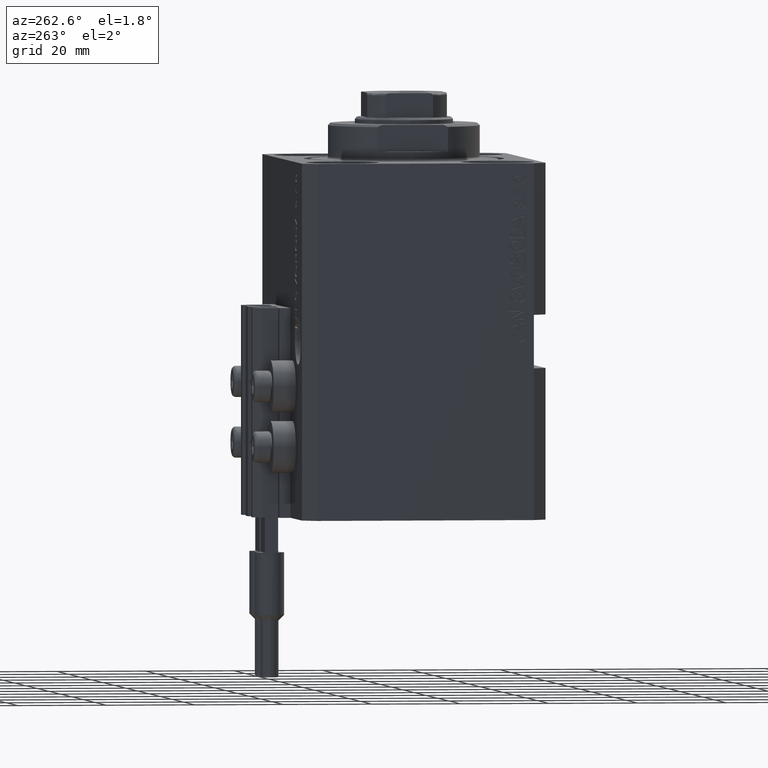
[diagram: clean part render]
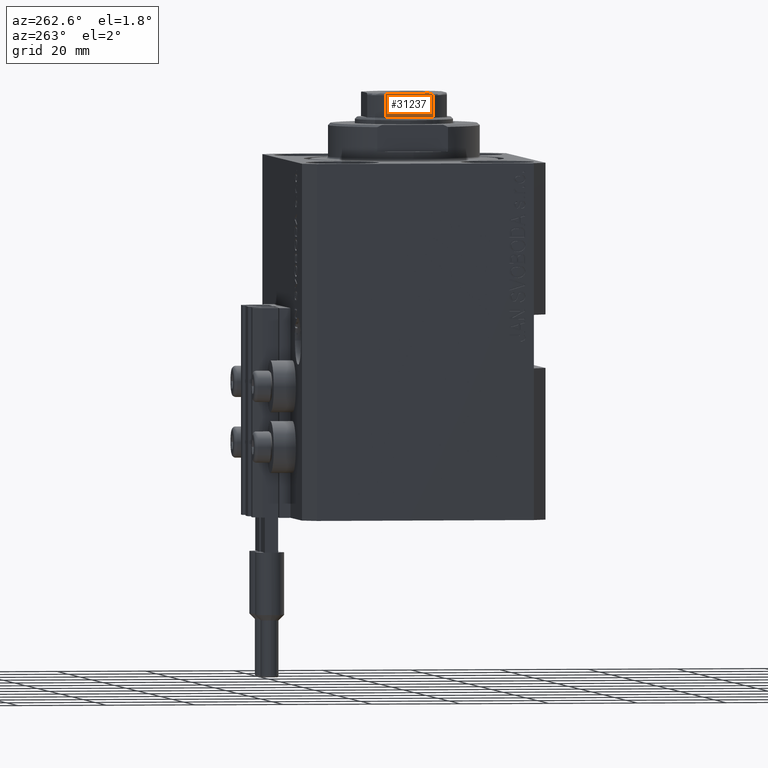
[diagram: same view with one face highlighted and labeled with its STEP entity id]
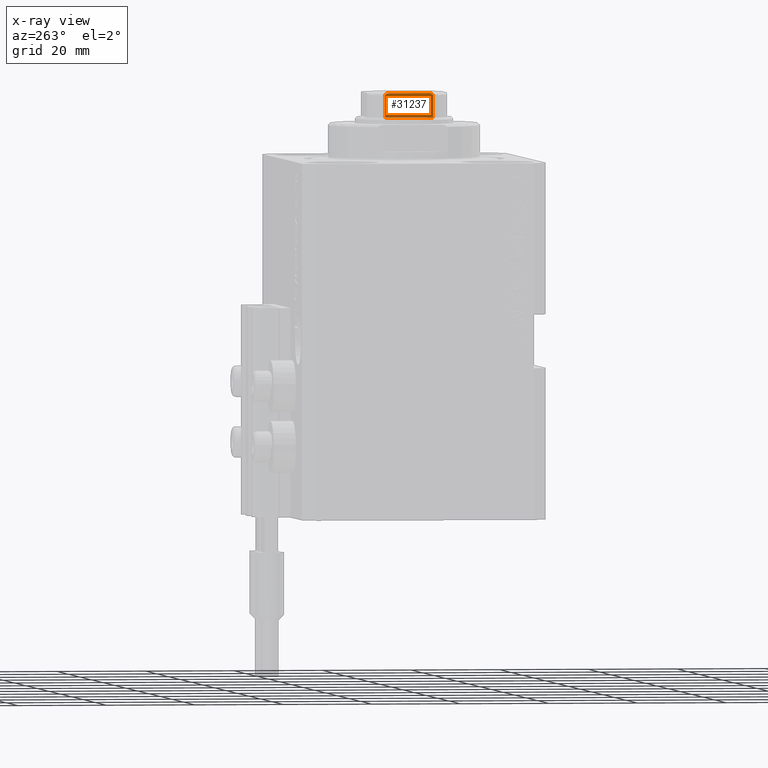
[diagram: x-ray of the same camera — body ghosted, the highlighted face saturated]
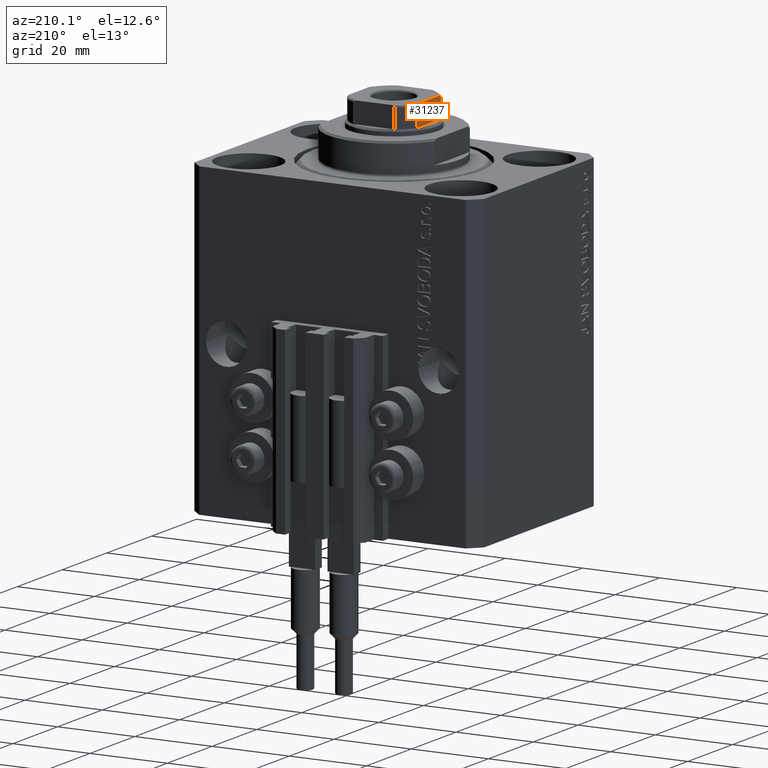
[diagram: same view with one face highlighted and labeled with its STEP entity id]
A machine part, auxiliary view. The second image highlights one B-rep face of the part: STEP entity #31237.
The next image is the same camera in x-ray: the body ghosted, the highlighted face saturated — about 0% of this face is hidden behind the body in this view.
A second angle (auxiliary view) of the same face is appended — the face is thin or edge-on in the first view.
In plain terms, the highlighted planar face has unit normal (1, 0, 0).
Its self-contained STEP definition (entity closure, byte-faithful):
#837 = LINE ( 'NONE', #15522, #23082 ) ;
#1500 = VECTOR ( 'NONE', #16111, 1000.000000000000000 ) ;
#2141 = CARTESIAN_POINT ( 'NONE',  ( -9.000000000000000000, -5.174818616237125468, 84.83252188465333177 ) ) ;
#2613 = CARTESIAN_POINT ( 'NONE',  ( -8.999999999999998224, -5.077896145217235535, 84.87730167760669531 ) ) ;
#3943 = CARTESIAN_POINT ( 'NONE',  ( -9.000000000000000000, 4.358898943540674864, 85.00000000000000000 ) ) ;
#4191 = VERTEX_POINT ( 'NONE', #7514 ) ;
#4275 = CARTESIAN_POINT ( 'NONE',  ( -9.000000000000000000, 8.999999999999998224, 85.00000000000000000 ) ) ;
#4440 = DIRECTION ( 'NONE',  ( -0.000000000000000000, -0.000000000000000000, 1.000000000000000000 ) ) ;
#4684 = CARTESIAN_POINT ( 'NONE',  ( -9.000000000000000000, 8.999999999999998224, 85.00000000000000000 ) ) ;
#5734 = CARTESIAN_POINT ( 'NONE',  ( -9.000000000000001776, -5.408326913195983465, 84.50000000000000000 ) ) ;
#5741 = VERTEX_POINT ( 'NONE', #25108 ) ;
#5961 = CARTESIAN_POINT ( 'NONE',  ( -9.000000000000000000, -5.298186678102093872, 84.73387812150049569 ) ) ;
#6291 = CARTESIAN_POINT ( 'NONE',  ( -8.999999999999998224, 5.408326913195985242, 84.55374346731879598 ) ) ;
#6765 = CARTESIAN_POINT ( 'NONE',  ( -8.999999999999998224, 5.297634495023396006, 84.73442280527800108 ) ) ;
#7514 = CARTESIAN_POINT ( 'NONE',  ( -9.000000000000001776, -5.408326913195983465, 84.50000000000000000 ) ) ;
#8859 = EDGE_CURVE ( 'NONE', #22549, #36000, #32387, .T. ) ;
#9441 = CARTESIAN_POINT ( 'NONE',  ( -9.000000000000000000, 4.569272810556665121, 85.00000000000000000 ) ) ;
#10081 = CARTESIAN_POINT ( 'NONE',  ( -9.000000000000000000, -4.358898943540675752, 85.00000000000000000 ) ) ;
#10159 = CARTESIAN_POINT ( 'NONE',  ( -9.000000000000000000, 5.390945448132520745, 84.60548165389703001 ) ) ;
#11743 = FACE_OUTER_BOUND ( 'NONE', #13171, .T. ) ;
#11900 = ORIENTED_EDGE ( 'NONE', *, *, #35227, .T. ) ;
#13171 = EDGE_LOOP ( 'NONE', ( #11900, #30924, #32107, #46530, #24093, #19478 ) ) ;
#13775 = CARTESIAN_POINT ( 'NONE',  ( -9.000000000000000000, 4.358898943540674864, 85.00000000000000000 ) ) ;
#15522 = CARTESIAN_POINT ( 'NONE',  ( -9.000000000000000000, 5.408326913195986130, -0.001000000000001000089 ) ) ;
#16111 = DIRECTION ( 'NONE',  ( -0.000000000000000000, -0.000000000000000000, 1.000000000000000000 ) ) ;
#17310 = VERTEX_POINT ( 'NONE', #44116 ) ;
#18418 = EDGE_CURVE ( 'NONE', #4191, #45791, #23656, .T. ) ;
#19478 = ORIENTED_EDGE ( 'NONE', *, *, #38702, .T. ) ;
#19614 = DIRECTION ( 'NONE',  ( 9.637352644315595243E-17, -1.000000000000000000, 0.000000000000000000 ) ) ;
#20432 = CARTESIAN_POINT ( 'NONE',  ( -8.999999999999998224, -5.390954572107323983, 84.60536285214001850 ) ) ;
#20738 = CARTESIAN_POINT ( 'NONE',  ( -9.000000000000001776, 5.074490744525479435, 84.87872007843326116 ) ) ;
#21635 = AXIS2_PLACEMENT_3D ( 'NONE', #4275, #41168, #47688 ) ;
#22549 = VERTEX_POINT ( 'NONE', #3943 ) ;
#23082 = VECTOR ( 'NONE', #4440, 1000.000000000000000 ) ;
#23656 = B_SPLINE_CURVE_WITH_KNOTS ( 'NONE', 3,
 ( #5734, #35165, #20432, #39506, #5961, #2141, #2613, #23825, #42637, #10081 ),
 .UNSPECIFIED., .F., .F.,
 ( 4, 2, 2, 2, 4 ),
 ( 0.000000000000000000, 0.0001582447020888033120, 0.0003164894041776066241, 0.0006329788083552373174, 0.001265957616710498487 ),
 .UNSPECIFIED. ) ;
#23825 = CARTESIAN_POINT ( 'NONE',  ( -9.000000000000000000, -4.778533838065920136, 84.97782914764697182 ) ) ;
#24093 = ORIENTED_EDGE ( 'NONE', *, *, #28582, .F. ) ;
#25108 = CARTESIAN_POINT ( 'NONE',  ( -9.000000000000001776, -5.408326913195983465, 79.50000000000000000 ) ) ;
#26499 = LINE ( 'NONE', #40993, #1500 ) ;
#27048 = VECTOR ( 'NONE', #19614, 1000.000000000000000 ) ;
#28582 = EDGE_CURVE ( 'NONE', #17310, #36000, #837, .T. ) ;
#30924 = ORIENTED_EDGE ( 'NONE', *, *, #18418, .T. ) ;
#31237 = ADVANCED_FACE ( 'NONE', ( #11743 ), #36835, .F. ) ;
#31632 = CARTESIAN_POINT ( 'NONE',  ( -9.000000000000000000, 4.775913644518300138, 84.97814607430834144 ) ) ;
#31672 = EDGE_CURVE ( 'NONE', #22549, #45791, #37733, .T. ) ;
#31693 = DIRECTION ( 'NONE',  ( 9.637352644315595243E-17, -1.000000000000000000, 0.000000000000000000 ) ) ;
#32107 = ORIENTED_EDGE ( 'NONE', *, *, #31672, .F. ) ;
#32387 = B_SPLINE_CURVE_WITH_KNOTS ( 'NONE', 3,
 ( #13775, #9441, #31632, #20738, #39823, #6765, #35957, #10159, #6291, #35719 ),
 .UNSPECIFIED., .F., .F.,
 ( 4, 2, 2, 2, 4 ),
 ( 0.000000000000000000, 0.0006221106941441068234, 0.0009331660412161592050, 0.001088693714752184257, 0.001244221388288209310 ),
 .UNSPECIFIED. ) ;
#35165 = CARTESIAN_POINT ( 'NONE',  ( -9.000000000000005329, -5.408326913195984353, 84.55357207273353026 ) ) ;
#35227 = EDGE_CURVE ( 'NONE', #5741, #4191, #26499, .T. ) ;
#35339 = CARTESIAN_POINT ( 'NONE',  ( -9.000000000000000000, -4.358898943540675752, 85.00000000000000000 ) ) ;
#35719 = CARTESIAN_POINT ( 'NONE',  ( -9.000000000000000000, 5.408326913195986130, 84.50000000000000000 ) ) ;
#35957 = CARTESIAN_POINT ( 'NONE',  ( -9.000000000000001776, 5.335288102212751404, 84.69569054027621746 ) ) ;
#36000 = VERTEX_POINT ( 'NONE', #45160 ) ;
#36302 = VECTOR ( 'NONE', #31693, 1000.000000000000000 ) ;
#36835 = PLANE ( 'NONE',  #21635 ) ;
#37733 = LINE ( 'NONE', #4684, #27048 ) ;
#38702 = EDGE_CURVE ( 'NONE', #17310, #5741, #46395, .T. ) ;
#39506 = CARTESIAN_POINT ( 'NONE',  ( -8.999999999999998224, -5.335664150027723984, 84.69518433800131163 ) ) ;
#39823 = CARTESIAN_POINT ( 'NONE',  ( -9.000000000000001776, 5.173732970196571301, 84.83318086437989791 ) ) ;
#39881 = CARTESIAN_POINT ( 'NONE',  ( -9.000000000000000000, 8.999999999999998224, 79.50000000000000000 ) ) ;
#40993 = CARTESIAN_POINT ( 'NONE',  ( -9.000000000000001776, -5.408326913195983465, -0.001000000000001000089 ) ) ;
#41168 = DIRECTION ( 'NONE',  ( 1.000000000000000000, 9.637352644315595243E-17, -0.000000000000000000 ) ) ;
#42637 = CARTESIAN_POINT ( 'NONE',  ( -8.999999999999996447, -4.569278586016985777, 84.99999999999997158 ) ) ;
#44116 = CARTESIAN_POINT ( 'NONE',  ( -9.000000000000000000, 5.408326913195983465, 79.50000000000000000 ) ) ;
#45160 = CARTESIAN_POINT ( 'NONE',  ( -9.000000000000000000, 5.408326913195986130, 84.50000000000000000 ) ) ;
#45791 = VERTEX_POINT ( 'NONE', #35339 ) ;
#46395 = LINE ( 'NONE', #39881, #36302 ) ;
#46530 = ORIENTED_EDGE ( 'NONE', *, *, #8859, .T. ) ;
#47688 = DIRECTION ( 'NONE',  ( -9.637352644315595243E-17, 1.000000000000000000, 0.000000000000000000 ) ) ;